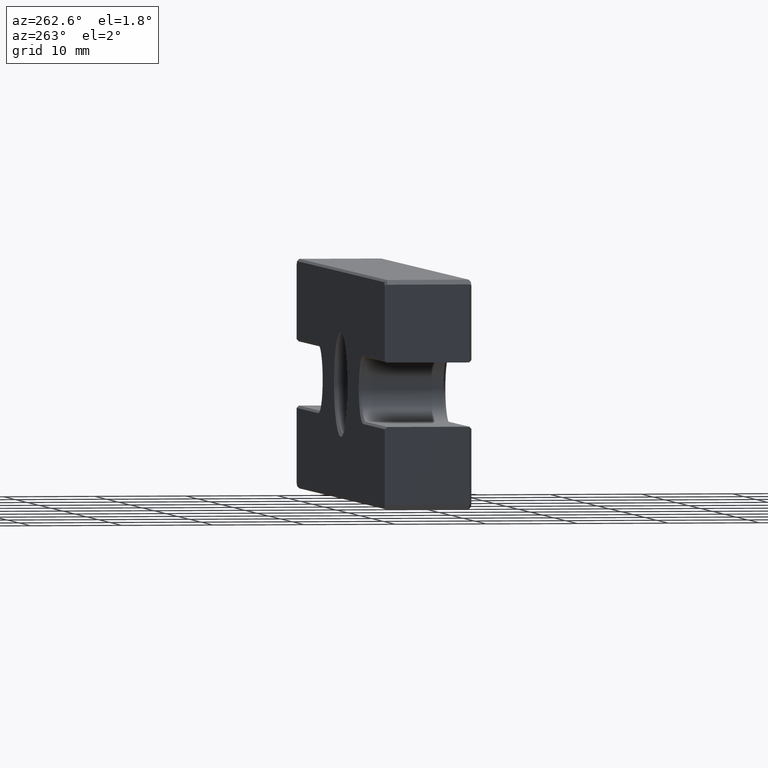
[diagram: clean part render]
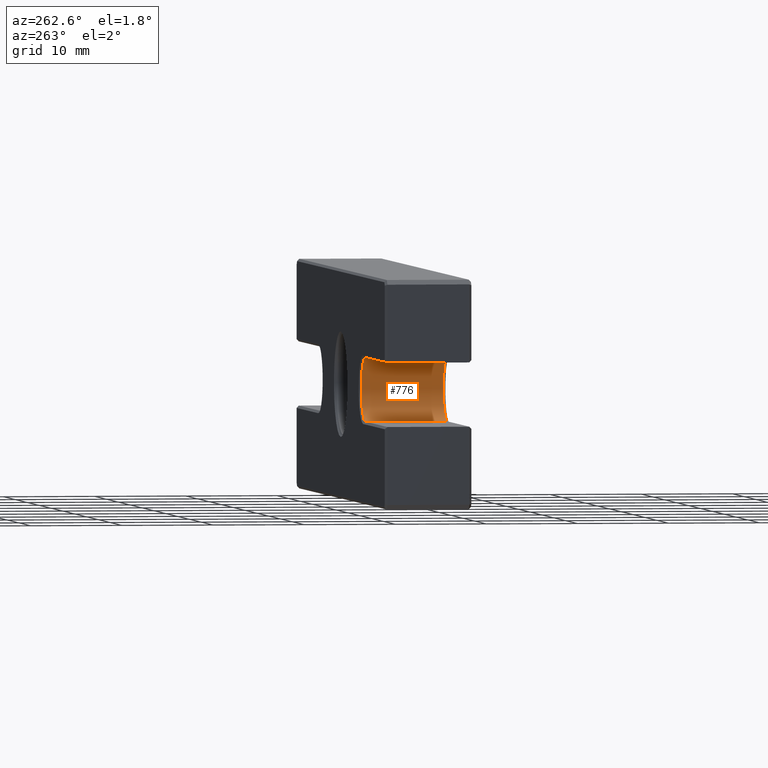
[diagram: same view with one face highlighted and labeled with its STEP entity id]
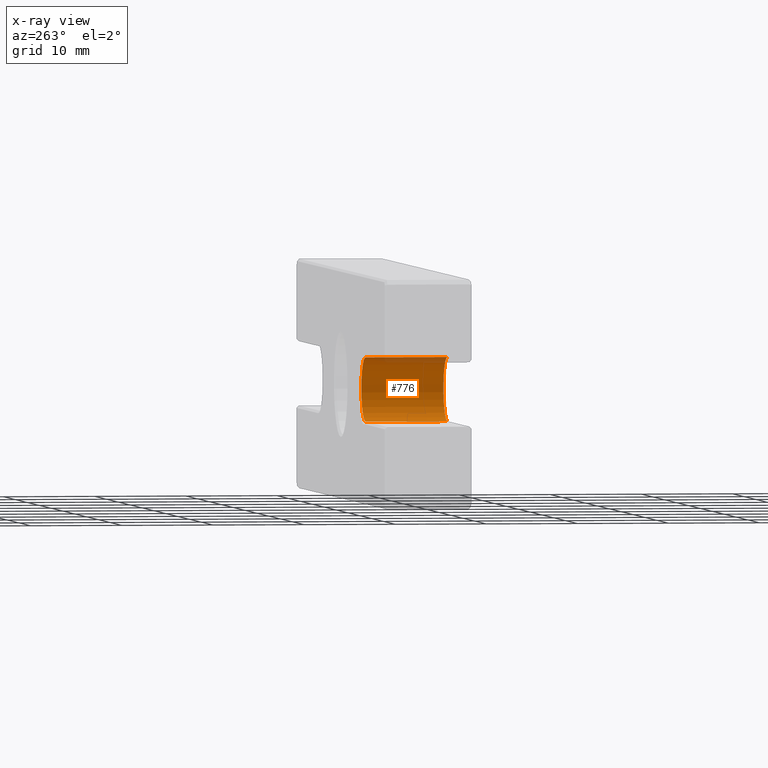
[diagram: x-ray of the same camera — body ghosted, the highlighted face saturated]
A machine part, auxiliary view. The second image highlights one B-rep face of the part: STEP entity #776.
The next image is the same camera in x-ray: the body ghosted, the highlighted face saturated — about 7% of this face is hidden behind the body in this view.
In plain terms, the highlighted cylindrical surface (edge-blend (fillet) strip) has radius 3.5 mm, axis along (-0, 1, -0).
Its self-contained STEP definition (entity closure, byte-faithful):
#33 = LINE ( 'NONE', #507, #1287 ) ;
#81 = CARTESIAN_POINT ( 'NONE',  ( -19.00000000000000355, 0.2499999999999880651, -4.336808689942017736E-16 ) ) ;
#174 = CARTESIAN_POINT ( 'NONE',  ( -19.00000000000000355, 9.250000000000014211, -3.500000000000000000 ) ) ;
#179 = FACE_OUTER_BOUND ( 'NONE', #1407, .T. ) ;
#205 = EDGE_CURVE ( 'NONE', #1193, #264, #33, .T. ) ;
#235 = LINE ( 'NONE', #1401, #976 ) ;
#264 = VERTEX_POINT ( 'NONE', #174 ) ;
#295 = VERTEX_POINT ( 'NONE', #1497 ) ;
#318 = EDGE_CURVE ( 'NONE', #1193, #732, #623, .T. ) ;
#444 = CYLINDRICAL_SURFACE ( 'NONE', #1340, 3.499999999999999556 ) ;
#453 = DIRECTION ( 'NONE',  ( -0.000000000000000000, -1.000000000000000000, -0.000000000000000000 ) ) ;
#486 = CIRCLE ( 'NONE', #679, 3.499999999999999556 ) ;
#507 = CARTESIAN_POINT ( 'NONE',  ( -19.00000000000000355, 0.000000000000000000, -3.500000000000000000 ) ) ;
#623 = CIRCLE ( 'NONE', #1484, 3.499999999999999556 ) ;
#650 = DIRECTION ( 'NONE',  ( -0.000000000000000000, 1.000000000000000000, -0.000000000000000000 ) ) ;
#679 = AXIS2_PLACEMENT_3D ( 'NONE', #1028, #1496, #1381 ) ;
#687 = CARTESIAN_POINT ( 'NONE',  ( -19.00000000000000355, 0.2499999999999880651, -3.500000000000000000 ) ) ;
#706 = DIRECTION ( 'NONE',  ( -0.000000000000000000, 1.000000000000000000, -0.000000000000000000 ) ) ;
#732 = VERTEX_POINT ( 'NONE', #906 ) ;
#773 = DIRECTION ( 'NONE',  ( 0.000000000000000000, 0.000000000000000000, 1.000000000000000000 ) ) ;
#776 = ADVANCED_FACE ( 'NONE', ( #179 ), #444, .F. ) ;
#832 = EDGE_CURVE ( 'NONE', #295, #264, #486, .T. ) ;
#906 = CARTESIAN_POINT ( 'NONE',  ( -19.00000000000000355, 0.2499999999999880651, 3.499999999999999112 ) ) ;
#913 = EDGE_CURVE ( 'NONE', #732, #295, #235, .T. ) ;
#976 = VECTOR ( 'NONE', #706, 1000.000000000000000 ) ;
#998 = DIRECTION ( 'NONE',  ( -0.000000000000000000, 1.000000000000000000, -0.000000000000000000 ) ) ;
#1028 = CARTESIAN_POINT ( 'NONE',  ( -19.00000000000000355, 9.250000000000014211, -4.336808689942017736E-16 ) ) ;
#1031 = ORIENTED_EDGE ( 'NONE', *, *, #205, .F. ) ;
#1101 = ORIENTED_EDGE ( 'NONE', *, *, #832, .T. ) ;
#1193 = VERTEX_POINT ( 'NONE', #687 ) ;
#1233 = ORIENTED_EDGE ( 'NONE', *, *, #318, .T. ) ;
#1244 = DIRECTION ( 'NONE',  ( 0.000000000000000000, 0.000000000000000000, 1.000000000000000000 ) ) ;
#1256 = CARTESIAN_POINT ( 'NONE',  ( -19.00000000000000355, 0.000000000000000000, -4.336808689942017736E-16 ) ) ;
#1287 = VECTOR ( 'NONE', #998, 1000.000000000000000 ) ;
#1340 = AXIS2_PLACEMENT_3D ( 'NONE', #1256, #650, #773 ) ;
#1381 = DIRECTION ( 'NONE',  ( 0.000000000000000000, 0.000000000000000000, 1.000000000000000000 ) ) ;
#1401 = CARTESIAN_POINT ( 'NONE',  ( -19.00000000000000355, 0.000000000000000000, 3.499999999999999112 ) ) ;
#1407 = EDGE_LOOP ( 'NONE', ( #1031, #1233, #1493, #1101 ) ) ;
#1484 = AXIS2_PLACEMENT_3D ( 'NONE', #81, #453, #1244 ) ;
#1493 = ORIENTED_EDGE ( 'NONE', *, *, #913, .T. ) ;
#1496 = DIRECTION ( 'NONE',  ( 0.000000000000000000, 1.000000000000000000, 0.000000000000000000 ) ) ;
#1497 = CARTESIAN_POINT ( 'NONE',  ( -19.00000000000000355, 9.250000000000014211, 3.499999999999999112 ) ) ;